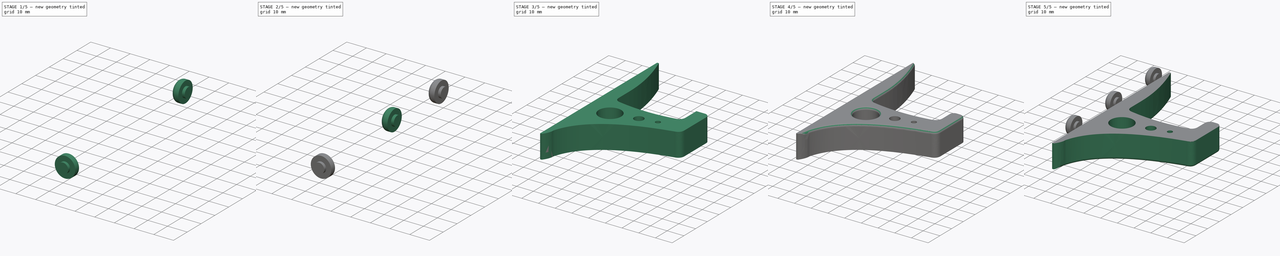
[diagram: build sequence overview — one tinted view per stage of 5, left to right]
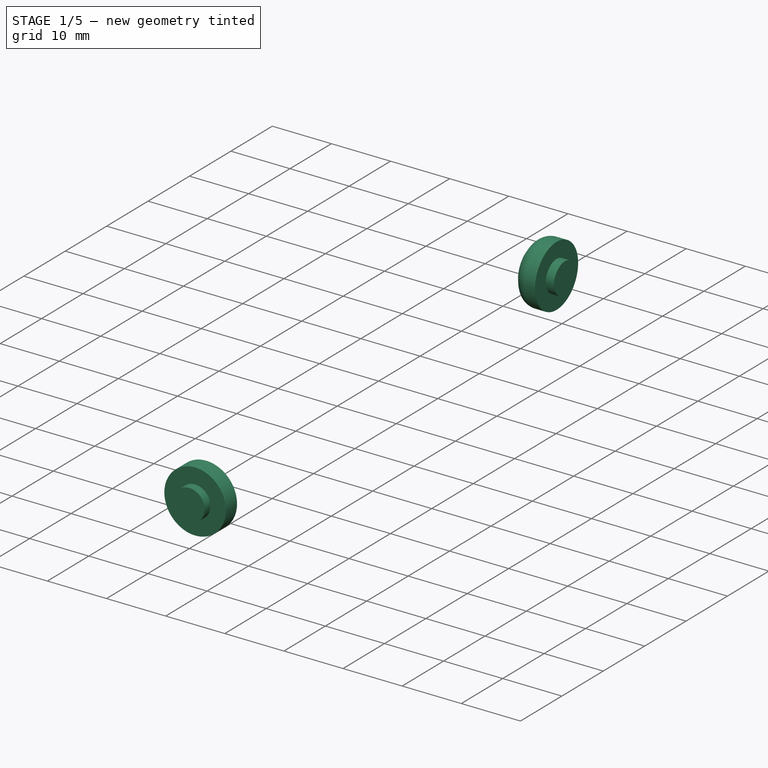
[diagram: stage 1 of 5 — iso view after this stage's code; geometry added in this stage tinted green]
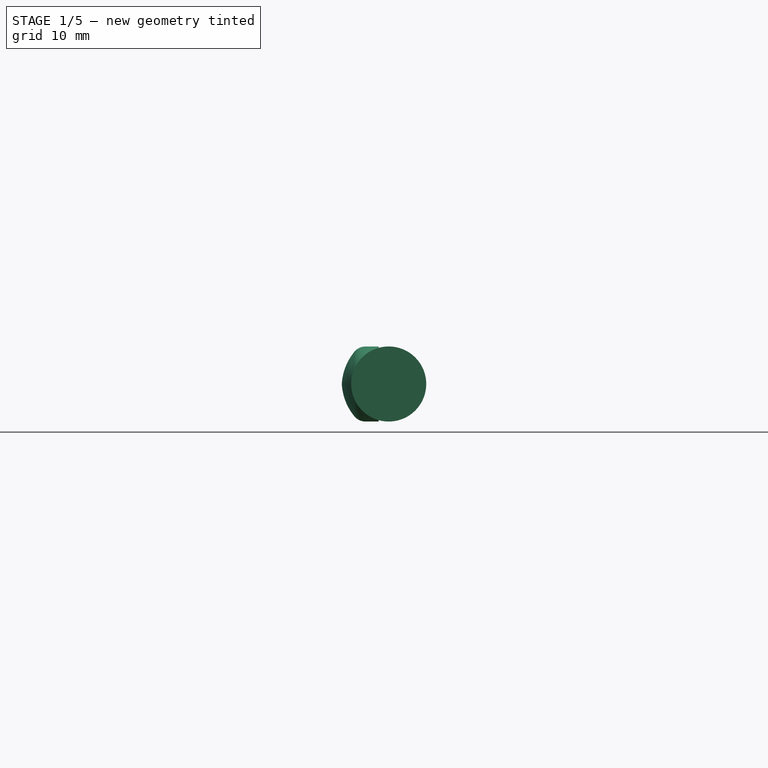
[diagram: stage 1 of 5 — front view after this stage's code; geometry added in this stage tinted green]
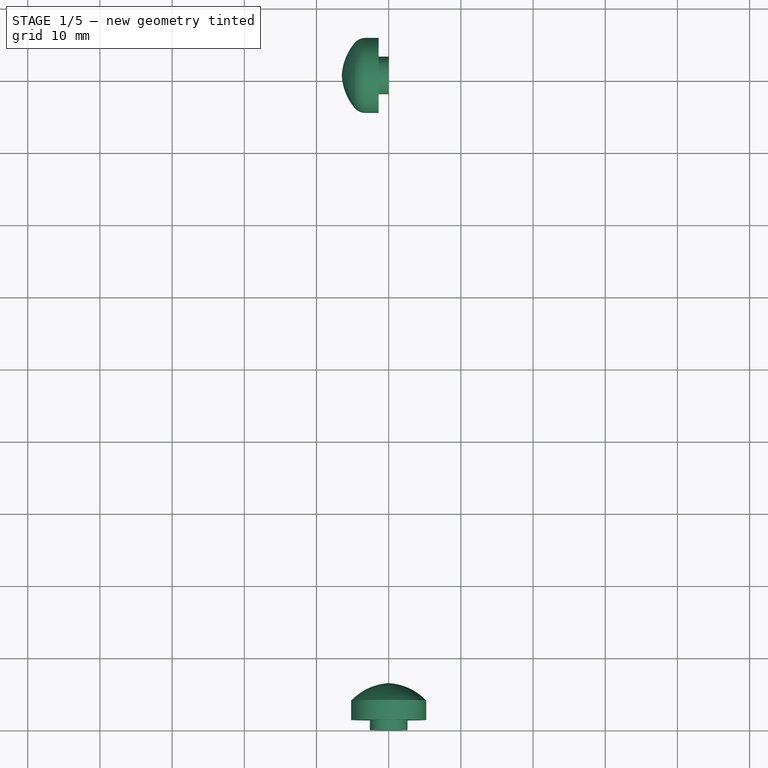
[diagram: stage 1 of 5 — top view after this stage's code; geometry added in this stage tinted green]
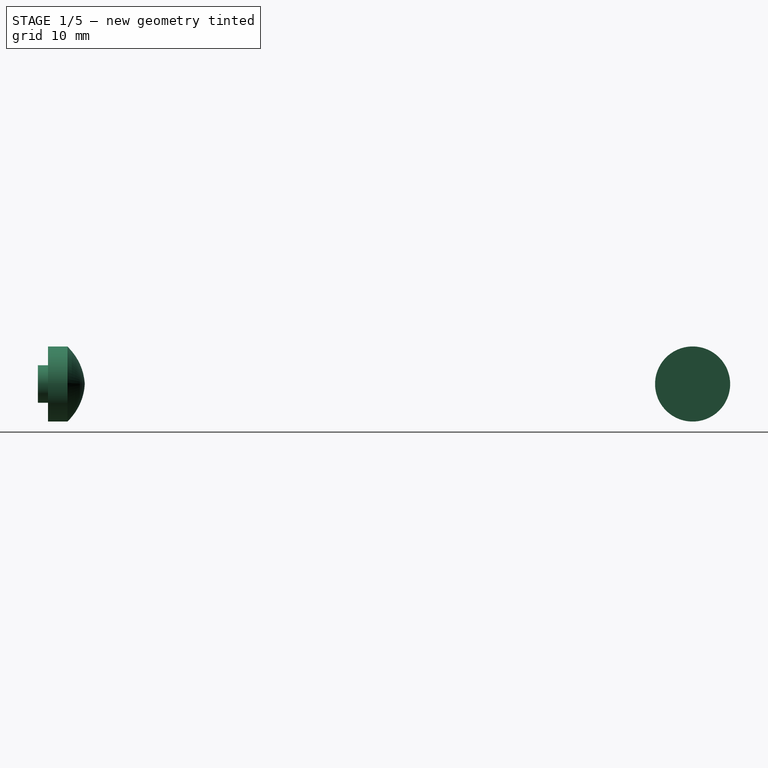
[diagram: stage 1 of 5 — right view after this stage's code; geometry added in this stage tinted green]
FCSTD DOCUMENT  (FreeCAD 0.19R0.19.2)
Label: headphoneStandWithHookStudsRemovedCurrent_8_fixedFlangeSize
License: All rights reserved
LicenseURL: http://en.wikipedia.org/wiki/All_rights_reserved
objects: Part::Fillet×9, Sketcher::SketchObject×8, Part::Revolution×3, Part::MultiFuse×2, App::Part×1, Part::Extrusion×1, Part::Mirroring×1
note: 24 computed .brp shape members not serialized (recipe doc carries the construction recipe); baked Part::Feature solids carry a one-line shape summary decoded from their .brp

FEATURE [Sketcher::SketchObject] Sketch006
  FullyConstrained = true
  Placement = pos=(0,0,0) rot=(0.707107,0,0.707107;3.14159rad)
  sketch-geometry (11):
    g0: LineSegment StartX=-2.6 StartY=0 StartZ=0 EndX=0 EndY=0 EndZ=0
    g1: LineSegment StartX=-2.6 StartY=-1.4 StartZ=0 EndX=-2.6 EndY=0 EndZ=0
    g2: LineSegment StartX=-5.2 StartY=-1.4 StartZ=0 EndX=-2.6 EndY=-1.4 EndZ=0
    g3: LineSegment StartX=-5.2 StartY=-1.4 StartZ=0 EndX=-5.2 EndY=-4.1 EndZ=0
    g4: LineSegment StartX=0 StartY=0 StartZ=0 EndX=0 EndY=-6.5 EndZ=0
    g5: Circle CenterX=-5.2 CenterY=-4.1 CenterZ=0 NormalX=0 NormalY=0 NormalZ=1 AngleXU=0 Radius=1
    g6: Circle CenterX=-2.98381 CenterY=-6.31873 CenterZ=0 NormalX=0 NormalY=0 NormalZ=1 AngleXU=0 Radius=1
    g7: Circle CenterX=0 CenterY=-6.5 CenterZ=0 NormalX=0 NormalY=0 NormalZ=1 AngleXU=0 Radius=1
    g8: BSplineCurve PolesCount=3 KnotsCount=2 Degree=2 IsPeriodic=0
    g9: GeomPoint X=-5.2 Y=-4.1 Z=0
    g10: GeomPoint X=0 Y=-6.5 Z=0
  constraints (26):
    c: Horizontal(g0)
    c: Distance(g0) = 2.6
    c: Vertical(g1)
    c: Distance(g1) = 1.4
    c: Coincident(g0,g-1)
    c: Coincident(g1,g0)
    c: Horizontal(g2)
    c: Coincident(g2,g1)
    c: Distance(g2) = 2.6
    c: Vertical(g3)
    c: Distance(g3) = 2.7
    c: Coincident(g3,g2)
    c: Vertical(g4)
    c: Distance(g4) = 6.5
    c: Coincident(g4,g0)
    c: Weight(g5) = 1
    c: Equal(g5,g6)
    c: Equal(g5,g7)
    c: InternalAlignment(g5,g8)
    c: InternalAlignment(g6,g8)
    c: InternalAlignment(g7,g8)
    c: InternalAlignment(g9,g8)
    c: InternalAlignment(g10,g8)
    c: Coincident(g8,g3)
    c: Coincident(g8,g4)
    c: Block(g8)
FEATURE [Part::Revolution] Revolve005
  Angle = 360
  Axis = (0,1,0)
  Base = (0,0,0)
  FaceMakerClass = Part::FaceMakerBullseye
  Solid = true
  Source = -> Sketch006
  Symmetric = false
FEATURE [Sketcher::SketchObject] Sketch007
  FullyConstrained = true
  Placement = pos=(0,0,0) rot=(0.707107,0,0.707107;3.14159rad)
  sketch-geometry (11):
    g0: LineSegment StartX=-2.6 StartY=0 StartZ=0 EndX=0 EndY=0 EndZ=0
    g1: LineSegment StartX=-2.6 StartY=-1.4 StartZ=0 EndX=-2.6 EndY=0 EndZ=0
    g2: LineSegment StartX=-5.2 StartY=-1.4 StartZ=0 EndX=-2.6 EndY=-1.4 EndZ=0
    g3: LineSegment StartX=-5.2 StartY=-1.4 StartZ=0 EndX=-5.2 EndY=-4.1 EndZ=0
    g4: LineSegment StartX=0 StartY=0 StartZ=0 EndX=0 EndY=-6.5 EndZ=0
    g5: Circle CenterX=-5.2 CenterY=-4.1 CenterZ=0 NormalX=0 NormalY=0 NormalZ=1 AngleXU=0 Radius=1
    g6: Circle CenterX=-2.98381 CenterY=-6.31873 CenterZ=0 NormalX=0 NormalY=0 NormalZ=1 AngleXU=0 Radius=1
    g7: Circle CenterX=0 CenterY=-6.5 CenterZ=0 NormalX=0 NormalY=0 NormalZ=1 AngleXU=0 Radius=1
    g8: BSplineCurve PolesCount=3 KnotsCount=2 Degree=2 IsPeriodic=0
    g9: GeomPoint X=-5.2 Y=-4.1 Z=0
    g10: GeomPoint X=0 Y=-6.5 Z=0
  constraints (26):
    c: Horizontal(g0)
    c: Distance(g0) = 2.6
    c: Vertical(g1)
    c: Distance(g1) = 1.4
    c: Coincident(g0,g-1)
    c: Coincident(g1,g0)
    c: Horizontal(g2)
    c: Coincident(g2,g1)
    c: Distance(g2) = 2.6
    c: Vertical(g3)
    c: Distance(g3) = 2.7
    c: Coincident(g3,g2)
    c: Vertical(g4)
    c: Distance(g4) = 6.5
    c: Coincident(g4,g0)
    c: Weight(g5) = 1
    c: Equal(g5,g6)
    c: Equal(g5,g7)
    c: InternalAlignment(g5,g8)
    c: InternalAlignment(g6,g8)
    c: InternalAlignment(g7,g8)
    c: InternalAlignment(g9,g8)
    c: InternalAlignment(g10,g8)
    c: Coincident(g8,g3)
    c: Coincident(g8,g4)
    c: Block(g8)
FEATURE [Part::Revolution] Revolve006
  Angle = 360
  Axis = (0,1,0)
  Base = (0,0,0)
  FaceMakerClass = Part::FaceMakerBullseye
  Solid = true
  Source = -> Sketch007
  Symmetric = false
FEATURE [Part::Fillet] Fillet013
  Base = -> Revolve006
  Edges = 1 edges r=2: [Edge2]
  Placement = pos=(0,90.7,0) rot=(0,0,1;1.5708rad)
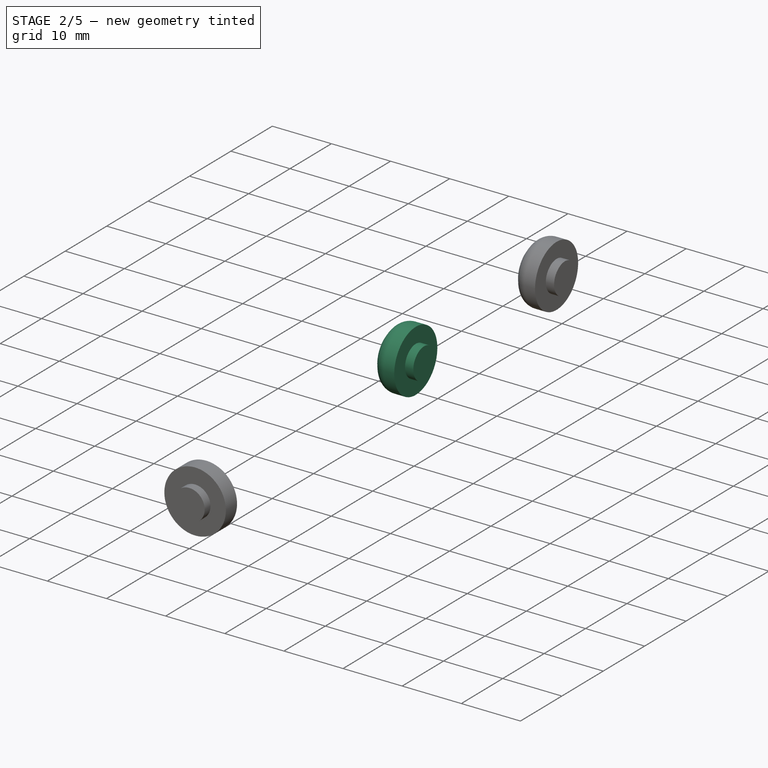
[diagram: stage 2 of 5 — iso view after this stage's code; geometry added in this stage tinted green]
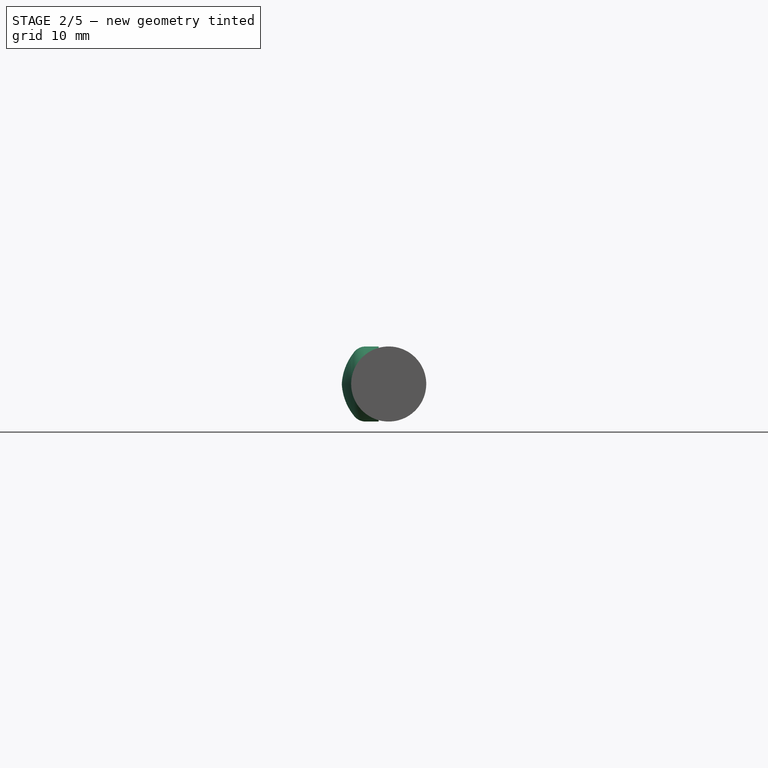
[diagram: stage 2 of 5 — front view after this stage's code; geometry added in this stage tinted green]
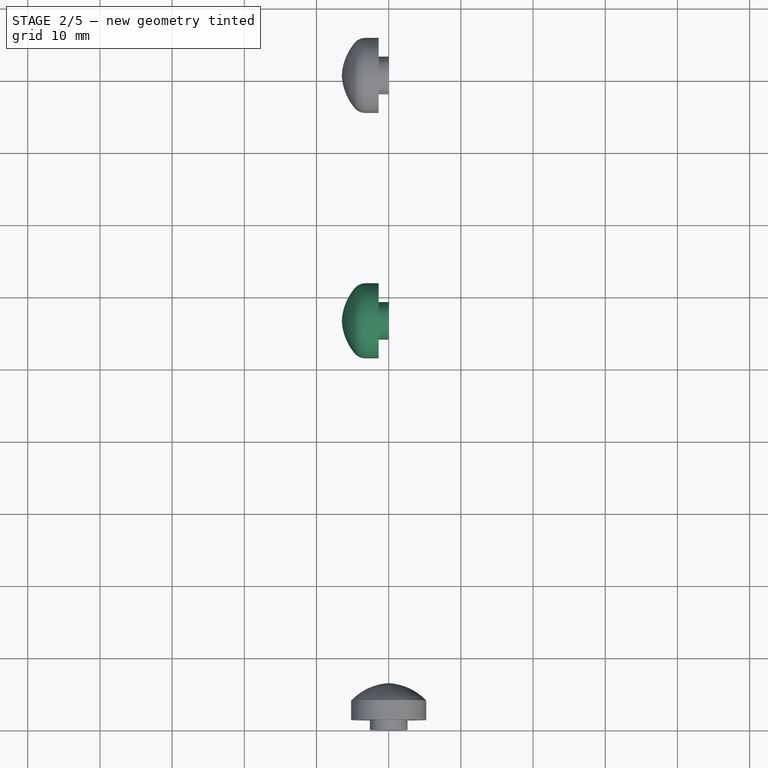
[diagram: stage 2 of 5 — top view after this stage's code; geometry added in this stage tinted green]
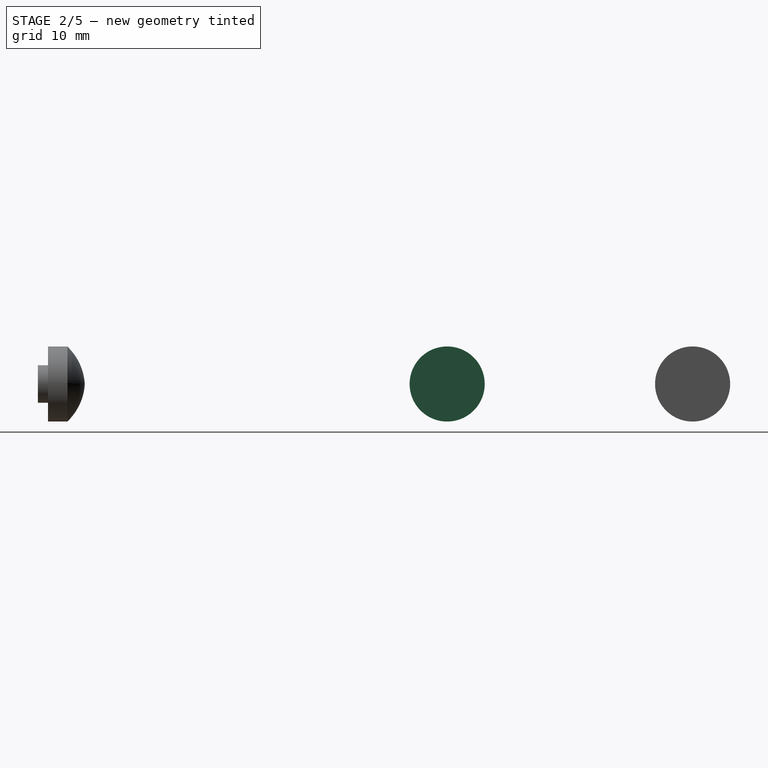
[diagram: stage 2 of 5 — right view after this stage's code; geometry added in this stage tinted green]
FEATURE [Sketcher::SketchObject] Sketch005
  FullyConstrained = true
  Placement = pos=(0,0,0) rot=(0.707107,0,0.707107;3.14159rad)
  sketch-geometry (11):
    g0: LineSegment StartX=-2.6 StartY=0 StartZ=0 EndX=0 EndY=0 EndZ=0
    g1: LineSegment StartX=-2.6 StartY=-1.4 StartZ=0 EndX=-2.6 EndY=0 EndZ=0
    g2: LineSegment StartX=-5.2 StartY=-1.4 StartZ=0 EndX=-2.6 EndY=-1.4 EndZ=0
    g3: LineSegment StartX=-5.2 StartY=-1.4 StartZ=0 EndX=-5.2 EndY=-4.1 EndZ=0
    g4: LineSegment StartX=0 StartY=0 StartZ=0 EndX=0 EndY=-6.5 EndZ=0
    g5: Circle CenterX=-5.2 CenterY=-4.1 CenterZ=0 NormalX=0 NormalY=0 NormalZ=1 AngleXU=0 Radius=1
    g6: Circle CenterX=-2.98381 CenterY=-6.31873 CenterZ=0 NormalX=0 NormalY=0 NormalZ=1 AngleXU=0 Radius=1
    g7: Circle CenterX=0 CenterY=-6.5 CenterZ=0 NormalX=0 NormalY=0 NormalZ=1 AngleXU=0 Radius=1
    g8: BSplineCurve PolesCount=3 KnotsCount=2 Degree=2 IsPeriodic=0
    g9: GeomPoint X=-5.2 Y=-4.1 Z=0
    g10: GeomPoint X=0 Y=-6.5 Z=0
  constraints (26):
    c: Horizontal(g0)
    c: Distance(g0) = 2.6
    c: Vertical(g1)
    c: Distance(g1) = 1.4
    c: Coincident(g0,g-1)
    c: Coincident(g1,g0)
    c: Horizontal(g2)
    c: Coincident(g2,g1)
    c: Distance(g2) = 2.6
    c: Vertical(g3)
    c: Distance(g3) = 2.7
    c: Coincident(g3,g2)
    c: Vertical(g4)
    c: Distance(g4) = 6.5
    c: Coincident(g4,g0)
    c: Weight(g5) = 1
    c: Equal(g5,g6)
    c: Equal(g5,g7)
    c: InternalAlignment(g5,g8)
    c: InternalAlignment(g6,g8)
    c: InternalAlignment(g7,g8)
    c: InternalAlignment(g9,g8)
    c: InternalAlignment(g10,g8)
    c: Coincident(g8,g3)
    c: Coincident(g8,g4)
    c: Block(g8)
FEATURE [Part::Revolution] Revolve004
  Angle = 360
  Axis = (0,1,0)
  Base = (0,0,0)
  FaceMakerClass = Part::FaceMakerBullseye
  Solid = true
  Source = -> Sketch005
  Symmetric = false
FEATURE [Part::Fillet] Fillet012
  Base = -> Revolve005
  Edges = 1 edges r=2: [Edge2]
  Placement = pos=(0,56.7,0) rot=(0,0,1;1.5708rad)
FEATURE [Part::MultiFuse] Fusion
  Shapes = -> [Fillet013,Fillet012]
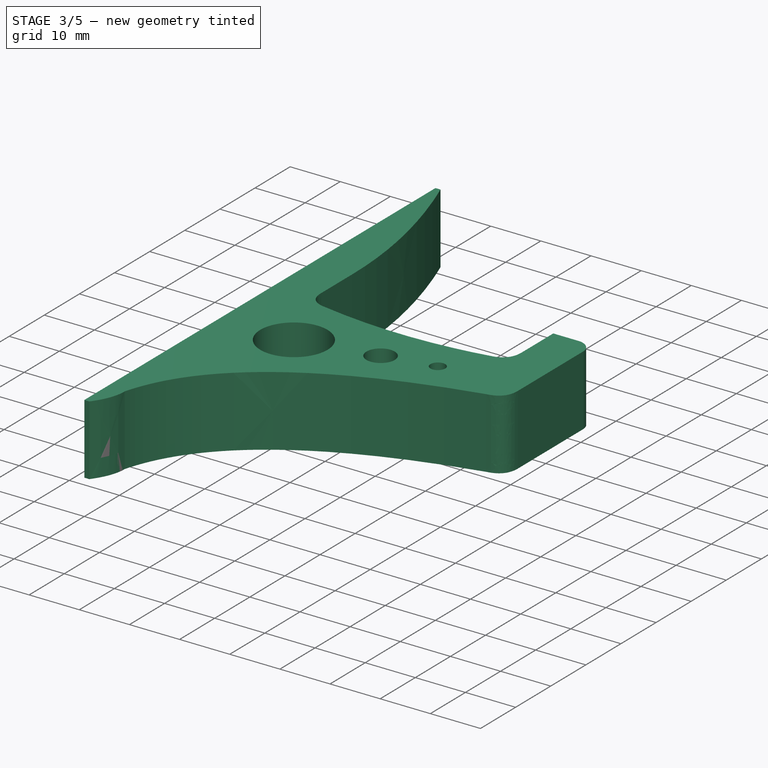
[diagram: stage 3 of 5 — iso view after this stage's code; geometry added in this stage tinted green]
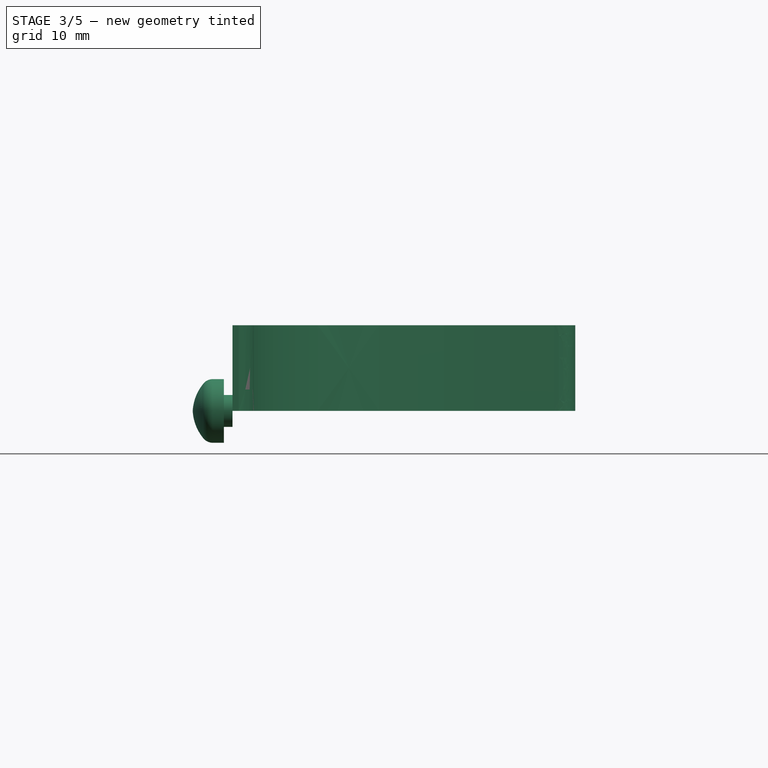
[diagram: stage 3 of 5 — front view after this stage's code; geometry added in this stage tinted green]
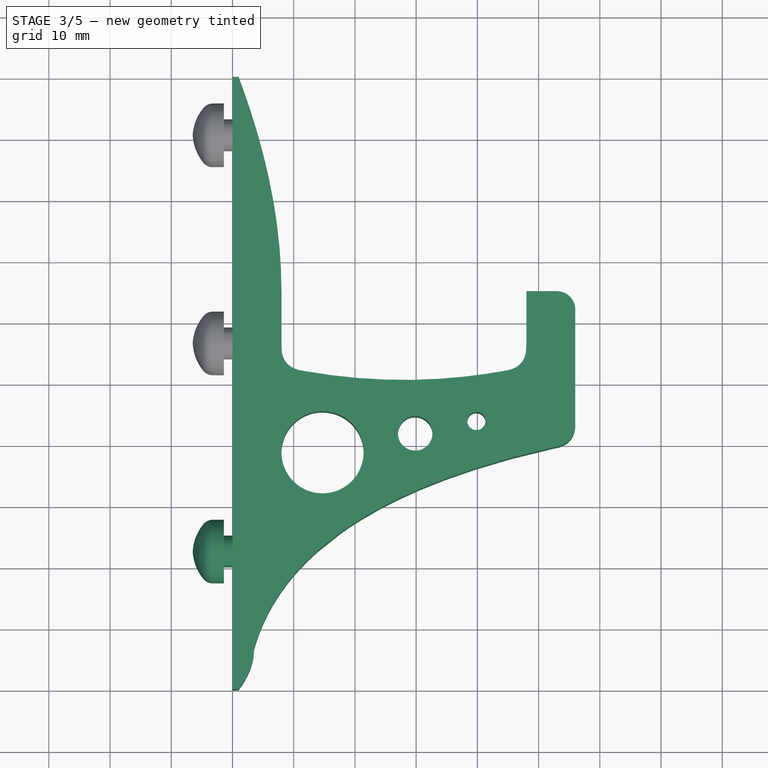
[diagram: stage 3 of 5 — top view after this stage's code; geometry added in this stage tinted green]
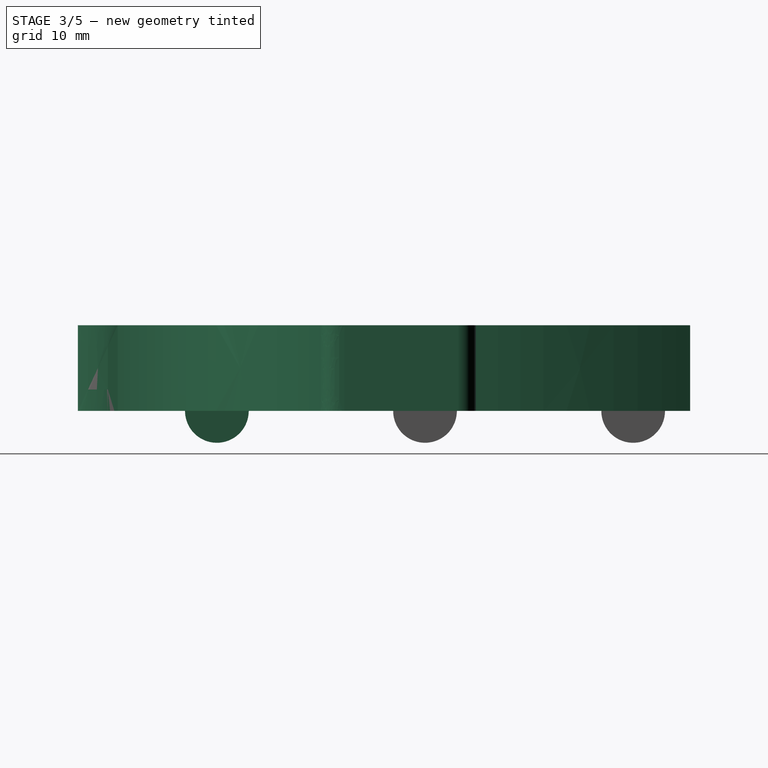
[diagram: stage 3 of 5 — right view after this stage's code; geometry added in this stage tinted green]
FEATURE [Sketcher::SketchObject] Sketch
  FullyConstrained = false
  sketch-geometry (53):
    g0: LineSegment StartX=0 StartY=0 StartZ=0 EndX=0 EndY=100 EndZ=0
    g1: LineSegment StartX=8 StartY=65 StartZ=0 EndX=8 EndY=56 EndZ=0
    g2: Circle CenterX=8 CenterY=56 CenterZ=0 NormalX=0 NormalY=0 NormalZ=1 AngleXU=0 Radius=1
    g3: Circle CenterX=8 CenterY=52.5 CenterZ=0 NormalX=0 NormalY=0 NormalZ=1 AngleXU=0 Radius=1
    g4: Circle CenterX=11.5 CenterY=52 CenterZ=0 NormalX=0 NormalY=0 NormalZ=1 AngleXU=0 Radius=1
    g5: BSplineCurve PolesCount=3 KnotsCount=2 Degree=2 IsPeriodic=0
    g6: GeomPoint X=8 Y=56 Z=0
    g7: GeomPoint X=11.5 Y=52 Z=0
    g8: Circle CenterX=44.5 CenterY=52 CenterZ=0 NormalX=0 NormalY=0 NormalZ=1 AngleXU=0 Radius=1
    g9: Circle CenterX=48 CenterY=52.5 CenterZ=0 NormalX=0 NormalY=0 NormalZ=1 AngleXU=0 Radius=1
    g10: Circle CenterX=48 CenterY=56 CenterZ=0 NormalX=0 NormalY=0 NormalZ=1 AngleXU=0 Radius=1
    g11: BSplineCurve PolesCount=3 KnotsCount=2 Degree=2 IsPeriodic=0
    g12: GeomPoint X=44.5 Y=52 Z=0
    g13: GeomPoint X=48 Y=56 Z=0
    g14: Circle CenterX=11.5 CenterY=52 CenterZ=0 NormalX=0 NormalY=0 NormalZ=1 AngleXU=0 Radius=1
    g15: Circle CenterX=28 CenterY=49 CenterZ=0 NormalX=0 NormalY=0 NormalZ=1 AngleXU=0 Radius=1
    g16: Circle CenterX=44.5 CenterY=52 CenterZ=0 NormalX=0 NormalY=0 NormalZ=1 AngleXU=0 Radius=1
    g17: BSplineCurve PolesCount=3 KnotsCount=2 Degree=2 IsPeriodic=0
    g18: GeomPoint X=11.5 Y=52 Z=0
    g19: GeomPoint X=44.5 Y=52 Z=0
    g20: LineSegment StartX=48 StartY=65 StartZ=0 EndX=48 EndY=56 EndZ=0
    g21: LineSegment StartX=48 StartY=65 StartZ=0 EndX=56 EndY=65 EndZ=0
    g22: LineSegment StartX=56 StartY=65 StartZ=0 EndX=56 EndY=43.5 EndZ=0
    g23: LineSegment StartX=0 StartY=0 StartZ=0 EndX=1 EndY=0 EndZ=0
    g24: LineSegment StartX=0 StartY=100 StartZ=0 EndX=1 EndY=100 EndZ=0
    g25: Circle CenterX=8 CenterY=65 CenterZ=0 NormalX=0 NormalY=0 NormalZ=1 AngleXU=0 Radius=1
    g26: Circle CenterX=8 CenterY=81.5 CenterZ=0 NormalX=0 NormalY=0 NormalZ=1 AngleXU=0 Radius=1
    g27: Circle CenterX=1 CenterY=100 CenterZ=0 NormalX=0 NormalY=0 NormalZ=1 AngleXU=0 Radius=1
    g28: BSplineCurve PolesCount=3 KnotsCount=2 Degree=2 IsPeriodic=0
    g29: GeomPoint X=8 Y=65 Z=0
    g30: GeomPoint X=1 Y=100 Z=0
    g31: Circle CenterX=1 CenterY=0 CenterZ=0 NormalX=0 NormalY=0 NormalZ=1 AngleXU=0 Radius=1
    g32: Circle CenterX=3.5 CenterY=3.3 CenterZ=0 NormalX=0 NormalY=0 NormalZ=1 AngleXU=0 Radius=1
    g33: Circle CenterX=3.5 CenterY=6.5 CenterZ=0 NormalX=0 NormalY=0 NormalZ=1 AngleXU=0 Radius=1
    g34: BSplineCurve PolesCount=3 KnotsCount=2 Degree=2 IsPeriodic=0
    g35: GeomPoint X=1 Y=0 Z=0
    g36: GeomPoint X=3.5 Y=6.5 Z=0
    g37: Circle CenterX=52.5 CenterY=39.5 CenterZ=0 NormalX=0 NormalY=0 NormalZ=1 AngleXU=0 Radius=1
    g38: Circle CenterX=14.7093 CenterY=38.6805 CenterZ=0 NormalX=0 NormalY=0 NormalZ=1 AngleXU=0 Radius=6.70926
    g39: Circle CenterX=29.841 CenterY=41.7672 CenterZ=0 NormalX=0 NormalY=0 NormalZ=1 AngleXU=0 Radius=2.81748
    g40: Circle CenterX=39.8381 CenterY=43.7858 CenterZ=0 NormalX=0 NormalY=0 NormalZ=1 AngleXU=0 Radius=1.47826
    g41: Circle CenterX=3.5 CenterY=6.5 CenterZ=0 NormalX=0 NormalY=0 NormalZ=1 AngleXU=0 Radius=1
    g42: Circle CenterX=10 CenterY=30 CenterZ=0 NormalX=0 NormalY=0 NormalZ=1 AngleXU=0 Radius=1
    g43: Circle CenterX=49.0984 CenterY=38.8305 CenterZ=0 NormalX=0 NormalY=0 NormalZ=1 AngleXU=0 Radius=1
    g44: BSplineCurve PolesCount=3 KnotsCount=2 Degree=2 IsPeriodic=0
    g45: GeomPoint X=3.5 Y=6.5 Z=0
    g46: GeomPoint X=49.0984 Y=38.8305 Z=0
    g47: Circle CenterX=49.0984 CenterY=38.8305 CenterZ=0 NormalX=0 NormalY=0 NormalZ=1 AngleXU=0 Radius=1
    g48: Circle CenterX=56 CenterY=40 CenterZ=0 NormalX=0 NormalY=0 NormalZ=1 AngleXU=0 Radius=1
    g49: Circle CenterX=56 CenterY=47 CenterZ=0 NormalX=0 NormalY=0 NormalZ=1 AngleXU=0 Radius=1
    g50: BSplineCurve PolesCount=3 KnotsCount=2 Degree=2 IsPeriodic=0
    g51: GeomPoint X=49.0984 Y=38.8305 Z=0
    g52: GeomPoint X=56 Y=47 Z=0
  constraints (93):
    c: Vertical(g0)
    c: Distance(g0) = 100
    c: Coincident(g0,g-1)
    c: Block(g0)
    c: Vertical(g1)
    c: Distance(g1) = 9
    c: Block(g1)
    c: Weight(g2) = 1
    c: Equal(g2,g3)
    c: Equal(g2,g4)
    c: InternalAlignment(g2,g5)
    c: InternalAlignment(g3,g5)
    c: InternalAlignment(g4,g5)
    c: InternalAlignment(g6,g5)
    c: InternalAlignment(g7,g5)
    c: Coincident(g5,g1)
    c: Block(g5)
    c: Weight(g8) = 1
    c: Equal(g8,g9)
    c: Equal(g8,g10)
    c: InternalAlignment(g8,g11)
    c: InternalAlignment(g9,g11)
    c: InternalAlignment(g10,g11)
    c: InternalAlignment(g12,g11)
    c: InternalAlignment(g13,g11)
    c: Block(g11)
    c: Weight(g14) = 1
    c: Equal(g14,g15)
    c: Equal(g14,g16)
    c: InternalAlignment(g14,g17)
    c: InternalAlignment(g15,g17)
    c: InternalAlignment(g16,g17)
    c: InternalAlignment(g18,g17)
    c: InternalAlignment(g19,g17)
    c: Coincident(g17,g5)
    c: Coincident(g17,g11)
    c: Block(g17)
    c: Vertical(g20)
    c: Coincident(g20,g11)
    c: Equal(g1,g20)
    c: Horizontal(g21)
    c: Coincident(g21,g20)
    c: Distance(g21) = 8
    c: Vertical(g22)
    c: Block(g21)
    c: Coincident(g22,g21)
    c: Distance(g22) = 21.5
    c: Horizontal(g23)
    c: Distance(g23) = 1
    c: Coincident(g23,g0)
    c: Block(g23)
    c: Horizontal(g24)
    c: Distance(g24) = 1
    c: Coincident(g24,g0)
    c: Block(g24)
    c: Weight(g25) = 1
    c: Equal(g25,g26)
    c: Equal(g25,g27)
    c: InternalAlignment(g25,g28)
    c: InternalAlignment(g26,g28)
    c: InternalAlignment(g27,g28)
    c: InternalAlignment(g29,g28)
    c: InternalAlignment(g30,g28)
    c: Coincident(g28,g24)
    c: Coincident(g28,g1)
    c: Block(g28)
    c: Weight(g31) = 1
    c: Equal(g31,g32)
    c: Equal(g31,g33)
    c: InternalAlignment(g31,g34)
    c: InternalAlignment(g32,g34)
    c: InternalAlignment(g33,g34)
    c: InternalAlignment(g35,g34)
    c: Block(g38)
    c: Block(g39)
    c: Block(g40)
    c: Weight(g41) = 1
    c: Equal(g41,g42)
    c: Equal(g41,g43)
    c: InternalAlignment(g41,g44)
    c: InternalAlignment(g42,g44)
    c: InternalAlignment(g43,g44)
    c: InternalAlignment(g45,g44)
    c: InternalAlignment(g46,g44)
    c: Coincident(g44,g34)
    c: Weight(g47) = 1
    c: Equal(g47,g48)
    c: Equal(g47,g49)
    c: InternalAlignment(g47,g50)
    c: InternalAlignment(g48,g50)
    c: InternalAlignment(g49,g50)
    c: InternalAlignment(g51,g50)
    c: InternalAlignment(g52,g50)
FEATURE [Sketcher::SketchObject] Sketch002
  FullyConstrained = true
  Placement = pos=(0,0,0) rot=(0.707107,0,0.707107;3.14159rad)
  sketch-geometry (11):
    g0: LineSegment StartX=-7.7 StartY=-1.5 StartZ=0 EndX=-2.5 EndY=-1.5 EndZ=0
    g1: LineSegment StartX=-2.5 StartY=0.1 StartZ=0 EndX=0 EndY=0.1 EndZ=0
    g2: LineSegment StartX=-7.7 StartY=-1.5 StartZ=0 EndX=-7.7 EndY=-4.2 EndZ=0
    g3: Circle CenterX=-7.7 CenterY=-4.2 CenterZ=0 NormalX=0 NormalY=0 NormalZ=1 AngleXU=0 Radius=1
    g4: Circle CenterX=-3.852 CenterY=-7.00779 CenterZ=0 NormalX=0 NormalY=0 NormalZ=1 AngleXU=0 Radius=1
    g5: Circle CenterX=0 CenterY=-7.2 CenterZ=0 NormalX=0 NormalY=0 NormalZ=1 AngleXU=0 Radius=1
    g6: BSplineCurve PolesCount=3 KnotsCount=2 Degree=2 IsPeriodic=0
    g7: GeomPoint X=-7.7 Y=-4.2 Z=0
    g8: GeomPoint X=0 Y=-7.2 Z=0
    g9: LineSegment StartX=-2.5 StartY=0.1 StartZ=0 EndX=-2.5 EndY=-1.5 EndZ=0
    g10: LineSegment StartX=0 StartY=0.1 StartZ=0 EndX=0 EndY=-7.2 EndZ=0
  constraints (24):
    c: Horizontal(g0)
    c: Distance(g0) = 5.2
    c: Horizontal(g1)
    c: Block(g0)
    c: Vertical(g2)
    c: Distance(g2) = 2.7
    c: Coincident(g2,g0)
    c: Weight(g3) = 1
    c: Equal(g3,g4)
    c: Equal(g3,g5)
    c: InternalAlignment(g3,g6)
    c: InternalAlignment(g4,g6)
    c: InternalAlignment(g5,g6)
    c: InternalAlignment(g7,g6)
    c: InternalAlignment(g8,g6)
    c: Coincident(g6,g2)
    c: Block(g6)
    c: Vertical(g9)
    c: Distance(g9) = 1.6
    c: Coincident(g9,g0)
    c: Vertical(g10)
    c: Coincident(g10,g6)
    c: Coincident(g1,g9)
    c: Coincident(g1,g10)
FEATURE [Sketcher::SketchObject] Sketch003
  FullyConstrained = true
  Placement = pos=(0,0,0) rot=(0.707107,0,0.707107;3.14159rad)
  sketch-geometry (11):
    g0: LineSegment StartX=-7.7 StartY=-1.5 StartZ=0 EndX=-2.5 EndY=-1.5 EndZ=0
    g1: LineSegment StartX=-2.5 StartY=0.1 StartZ=0 EndX=0 EndY=0.1 EndZ=0
    g2: LineSegment StartX=-7.7 StartY=-1.5 StartZ=0 EndX=-7.7 EndY=-4.2 EndZ=0
    g3: Circle CenterX=-7.7 CenterY=-4.2 CenterZ=0 NormalX=0 NormalY=0 NormalZ=1 AngleXU=0 Radius=1
    g4: Circle CenterX=-3.852 CenterY=-7.00779 CenterZ=0 NormalX=0 NormalY=0 NormalZ=1 AngleXU=0 Radius=1
    g5: Circle CenterX=0 CenterY=-7.2 CenterZ=0 NormalX=0 NormalY=0 NormalZ=1 AngleXU=0 Radius=1
    g6: BSplineCurve PolesCount=3 KnotsCount=2 Degree=2 IsPeriodic=0
    g7: GeomPoint X=-7.7 Y=-4.2 Z=0
    g8: GeomPoint X=0 Y=-7.2 Z=0
    g9: LineSegment StartX=-2.5 StartY=0.1 StartZ=0 EndX=-2.5 EndY=-1.5 EndZ=0
    g10: LineSegment StartX=0 StartY=0.1 StartZ=0 EndX=0 EndY=-7.2 EndZ=0
  constraints (24):
    c: Horizontal(g0)
    c: Distance(g0) = 5.2
    c: Horizontal(g1)
    c: Block(g0)
    c: Vertical(g2)
    c: Distance(g2) = 2.7
    c: Coincident(g2,g0)
    c: Weight(g3) = 1
    c: Equal(g3,g4)
    c: Equal(g3,g5)
    c: InternalAlignment(g3,g6)
    c: InternalAlignment(g4,g6)
    c: InternalAlignment(g5,g6)
    c: InternalAlignment(g7,g6)
    c: InternalAlignment(g8,g6)
    c: Coincident(g6,g2)
    c: Block(g6)
    c: Vertical(g9)
    c: Distance(g9) = 1.6
    c: Coincident(g9,g0)
    c: Vertical(g10)
    c: Coincident(g10,g6)
    c: Coincident(g1,g9)
    c: Coincident(g1,g10)
FEATURE [Sketcher::SketchObject] Sketch004
  FullyConstrained = true
  Placement = pos=(0,0,0) rot=(0.707107,0,0.707107;3.14159rad)
  sketch-geometry (11):
    g0: LineSegment StartX=-7.7 StartY=-1.5 StartZ=0 EndX=-2.5 EndY=-1.5 EndZ=0
    g1: LineSegment StartX=-2.5 StartY=0.1 StartZ=0 EndX=0 EndY=0.1 EndZ=0
    g2: LineSegment StartX=-7.7 StartY=-1.5 StartZ=0 EndX=-7.7 EndY=-4.2 EndZ=0
    g3: Circle CenterX=-7.7 CenterY=-4.2 CenterZ=0 NormalX=0 NormalY=0 NormalZ=1 AngleXU=0 Radius=1
    g4: Circle CenterX=-3.852 CenterY=-7.00779 CenterZ=0 NormalX=0 NormalY=0 NormalZ=1 AngleXU=0 Radius=1
    g5: Circle CenterX=0 CenterY=-7.2 CenterZ=0 NormalX=0 NormalY=0 NormalZ=1 AngleXU=0 Radius=1
    g6: BSplineCurve PolesCount=3 KnotsCount=2 Degree=2 IsPeriodic=0
    g7: GeomPoint X=-7.7 Y=-4.2 Z=0
    g8: GeomPoint X=0 Y=-7.2 Z=0
    g9: LineSegment StartX=-2.5 StartY=0.1 StartZ=0 EndX=-2.5 EndY=-1.5 EndZ=0
    g10: LineSegment StartX=0 StartY=0.1 StartZ=0 EndX=0 EndY=-7.2 EndZ=0
  constraints (24):
    c: Horizontal(g0)
    c: Distance(g0) = 5.2
    c: Horizontal(g1)
    c: Block(g0)
    c: Vertical(g2)
    c: Distance(g2) = 2.7
    c: Coincident(g2,g0)
    c: Weight(g3) = 1
    c: Equal(g3,g4)
    c: Equal(g3,g5)
    c: InternalAlignment(g3,g6)
    c: InternalAlignment(g4,g6)
    c: InternalAlignment(g5,g6)
    c: InternalAlignment(g7,g6)
    c: InternalAlignment(g8,g6)
    c: Coincident(g6,g2)
    c: Block(g6)
    c: Vertical(g9)
    c: Distance(g9) = 1.6
    c: Coincident(g9,g0)
    c: Vertical(g10)
    c: Coincident(g10,g6)
    c: Coincident(g1,g9)
    c: Coincident(g1,g10)
FEATURE [App::Part] Part
  Origin = -> Origin
FEATURE [Part::Extrusion] Extrude
  Base = -> Sketch
  Dir = (0,0,1)
  DirMode = 2
  FaceMakerClass = Part::FaceMakerBullseye
  LengthFwd = 14
  LengthRev = 0
  Solid = true
  Symmetric = false
FEATURE [Part::Fillet] Fillet
  Base = -> Extrude
  Edges = 1 edges r=3: [Edge29]
FEATURE [Part::Fillet] Fillet011
  Base = -> Revolve004
  Edges = 1 edges r=2: [Edge2]
  Placement = pos=(0,22.7,0) rot=(0,0,1;1.5708rad)
FEATURE [Part::MultiFuse] Fusion001
  Shapes = -> [Fillet011,Fusion]
FEATURE [Sketcher::SketchObject] Sketch008
  FullyConstrained = true
  Placement = pos=(0,0,0) rot=(0.707107,0,0.707107;3.14159rad)
  sketch-geometry (11):
    g0: LineSegment StartX=-2.6 StartY=0 StartZ=0 EndX=0 EndY=0 EndZ=0
    g1: LineSegment StartX=-2.6 StartY=-1.4 StartZ=0 EndX=-2.6 EndY=0 EndZ=0
    g2: LineSegment StartX=-5.2 StartY=-1.4 StartZ=0 EndX=-2.6 EndY=-1.4 EndZ=0
    g3: LineSegment StartX=-5.2 StartY=-1.4 StartZ=0 EndX=-5.2 EndY=-4.1 EndZ=0
    g4: LineSegment StartX=0 StartY=0 StartZ=0 EndX=0 EndY=-6.5 EndZ=0
    g5: Circle CenterX=-5.2 CenterY=-4.1 CenterZ=0 NormalX=0 NormalY=0 NormalZ=1 AngleXU=0 Radius=1
    g6: Circle CenterX=-2.98381 CenterY=-6.31873 CenterZ=0 NormalX=0 NormalY=0 NormalZ=1 AngleXU=0 Radius=1
    g7: Circle CenterX=0 CenterY=-6.5 CenterZ=0 NormalX=0 NormalY=0 NormalZ=1 AngleXU=0 Radius=1
    g8: BSplineCurve PolesCount=3 KnotsCount=2 Degree=2 IsPeriodic=0
    g9: GeomPoint X=-5.2 Y=-4.1 Z=0
    g10: GeomPoint X=0 Y=-6.5 Z=0
  constraints (26):
    c: Horizontal(g0)
    c: Distance(g0) = 2.6
    c: Vertical(g1)
    c: Distance(g1) = 1.4
    c: Coincident(g0,g-1)
    c: Coincident(g1,g0)
    c: Horizontal(g2)
    c: Coincident(g2,g1)
    c: Distance(g2) = 2.6
    c: Vertical(g3)
    c: Distance(g3) = 2.7
    c: Coincident(g3,g2)
    c: Vertical(g4)
    c: Distance(g4) = 6.5
    c: Coincident(g4,g0)
    c: Weight(g5) = 1
    c: Equal(g5,g6)
    c: Equal(g5,g7)
    c: InternalAlignment(g5,g8)
    c: InternalAlignment(g6,g8)
    c: InternalAlignment(g7,g8)
    c: InternalAlignment(g9,g8)
    c: InternalAlignment(g10,g8)
    c: Coincident(g8,g3)
    c: Coincident(g8,g4)
    c: Block(g8)
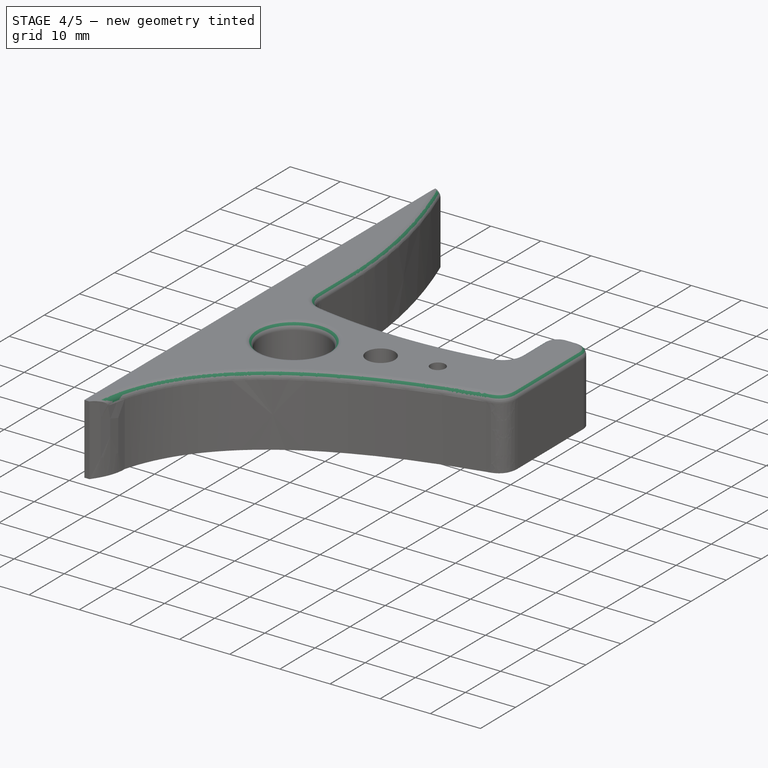
[diagram: stage 4 of 5 — iso view after this stage's code; geometry added in this stage tinted green]
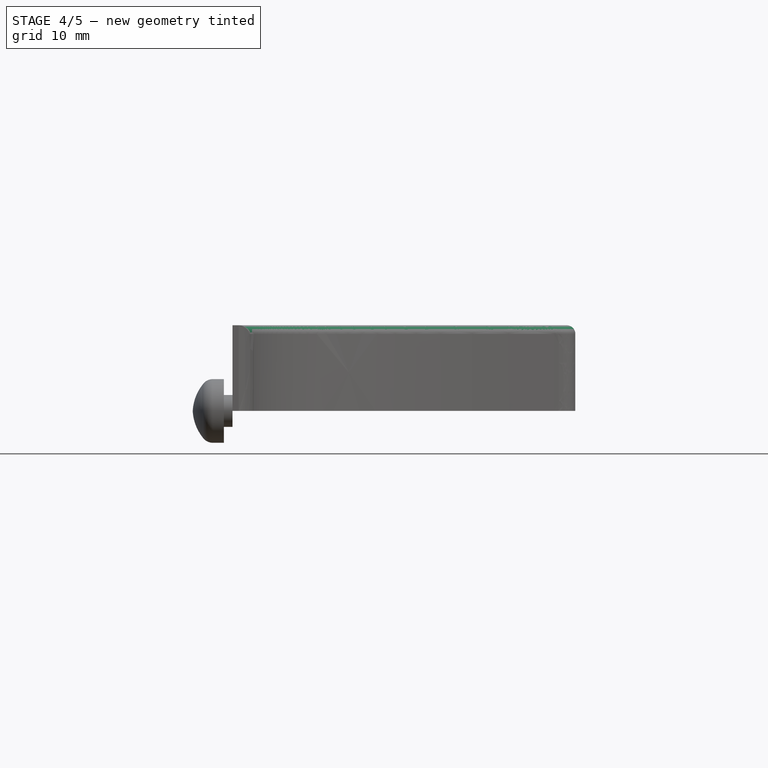
[diagram: stage 4 of 5 — front view after this stage's code; geometry added in this stage tinted green]
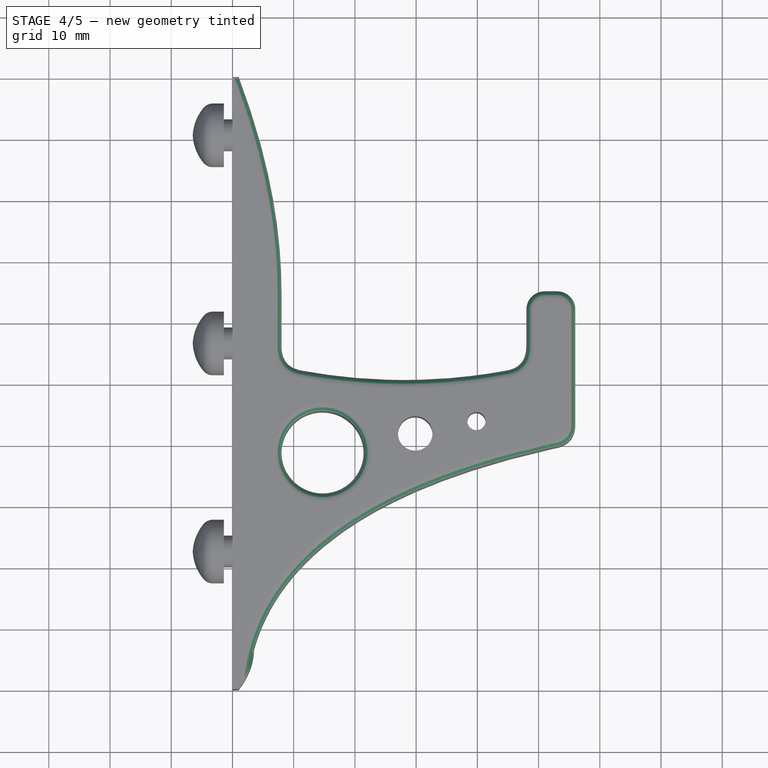
[diagram: stage 4 of 5 — top view after this stage's code; geometry added in this stage tinted green]
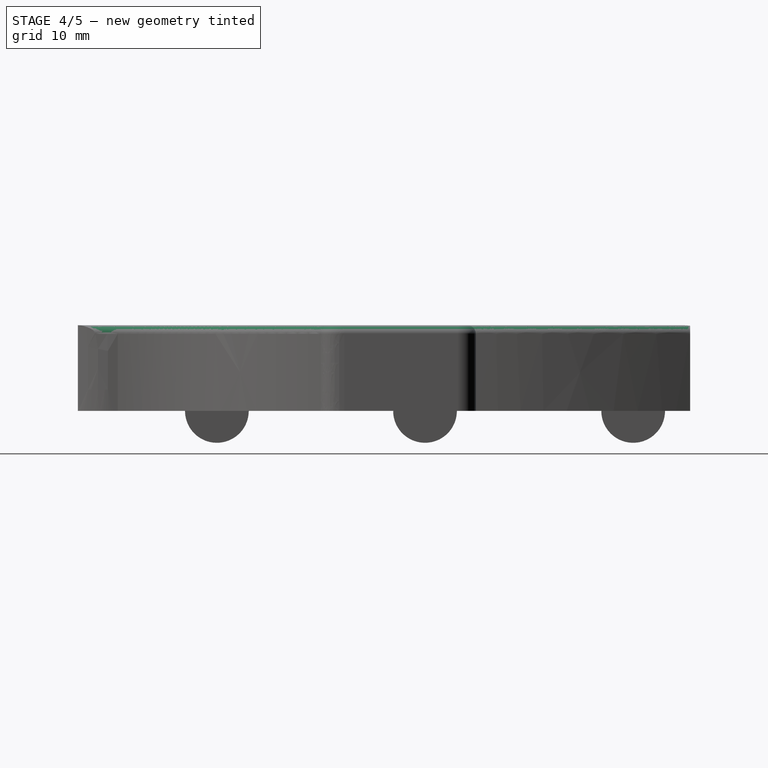
[diagram: stage 4 of 5 — right view after this stage's code; geometry added in this stage tinted green]
FEATURE [Part::Fillet] Fillet006
  Base = -> Fillet
  Edges = 1 edges r=3: [Edge2]
FEATURE [Part::Fillet] Fillet007
  Base = -> Fillet006
  Edges = 1 edges r=1.4: [Edge29]
FEATURE [Part::Fillet] Fillet008
  Base = -> Fillet007
  Edges = 1 edges r=1.4: [Edge46]
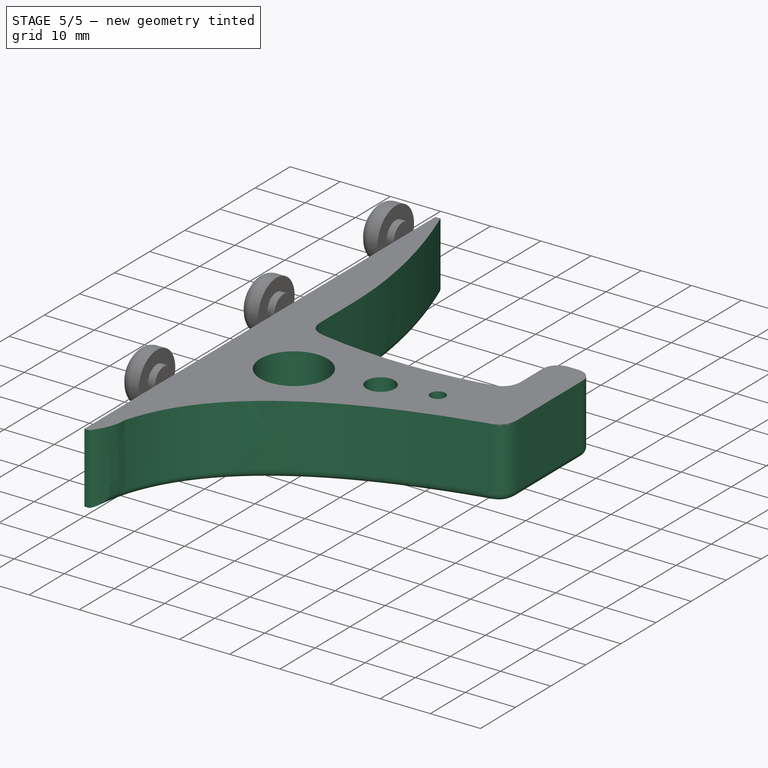
[diagram: stage 5 of 5 — iso view after this stage's code; geometry added in this stage tinted green]
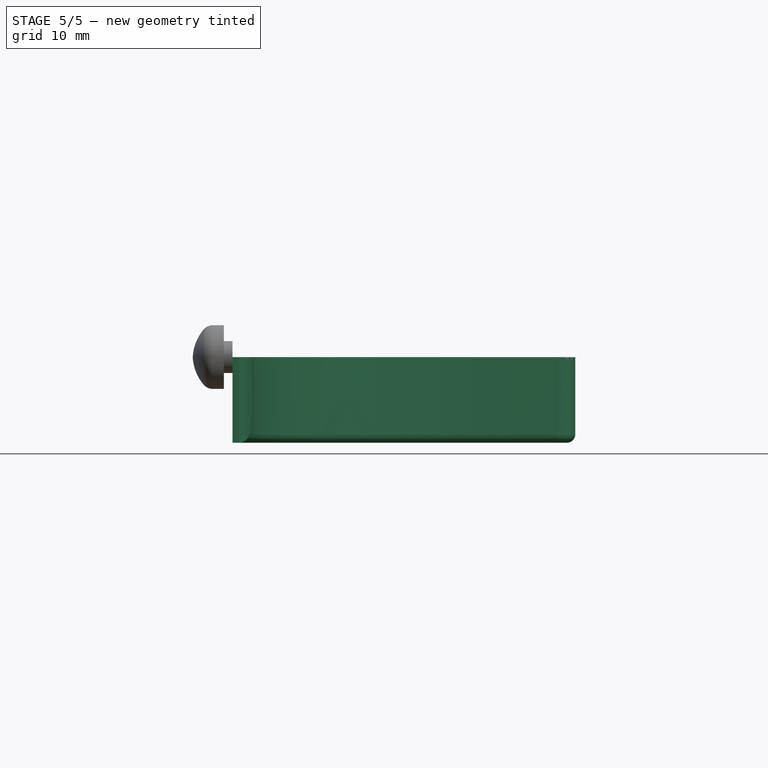
[diagram: stage 5 of 5 — front view after this stage's code; geometry added in this stage tinted green]
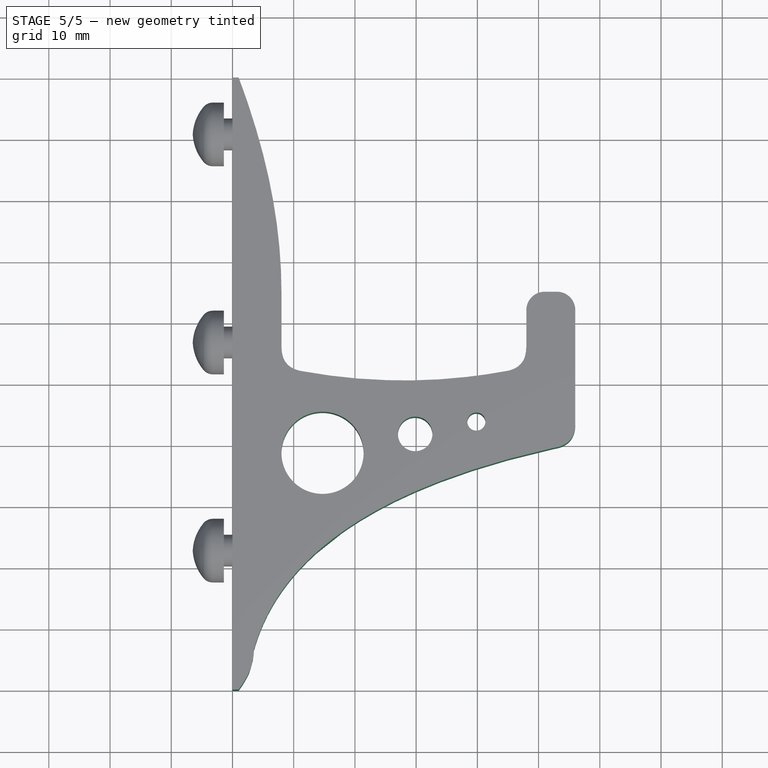
[diagram: stage 5 of 5 — top view after this stage's code; geometry added in this stage tinted green]
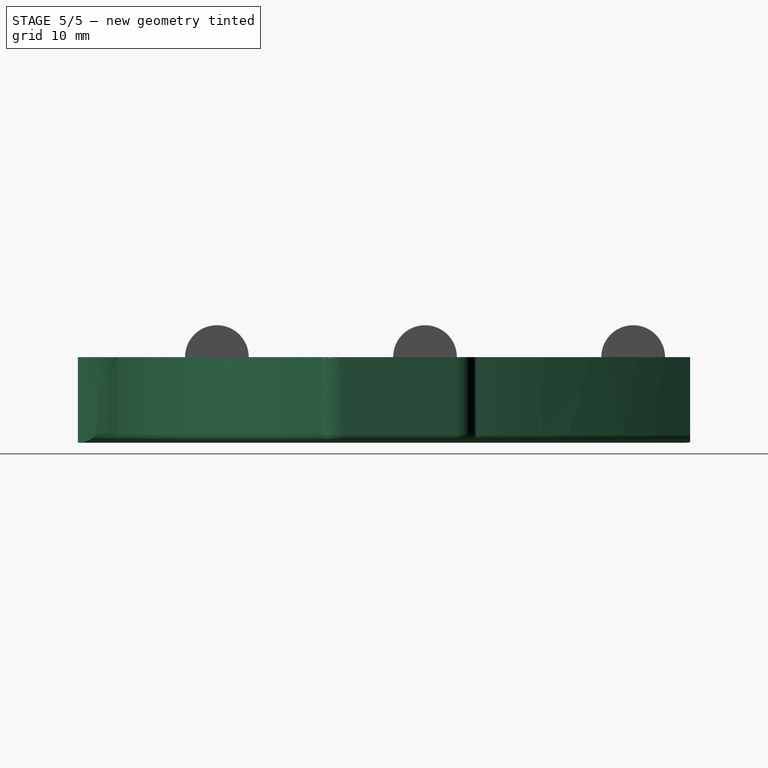
[diagram: stage 5 of 5 — right view after this stage's code; geometry added in this stage tinted green]
FEATURE [Part::Fillet] Fillet009
  Base = -> Fillet008
  Edges = 1 edges r=1.4: [Edge16]
FEATURE [Part::Fillet] Fillet010
  Base = -> Fillet009
  Edges = 1 edges r=1.4: [Edge17]
FEATURE [Part::Mirroring] Part__Mirroring  label="Fillet010 (Mirror #1)"
  Base = (0,0,0)
  Normal = (0,0,1)
  Source = -> Fillet010
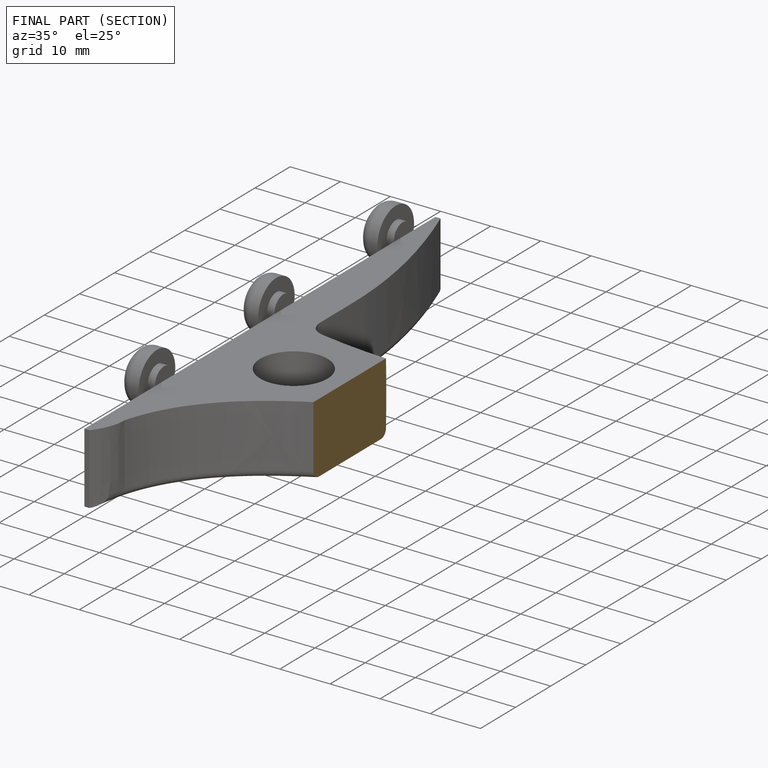
[diagram: finished part — half-section view (interior)]
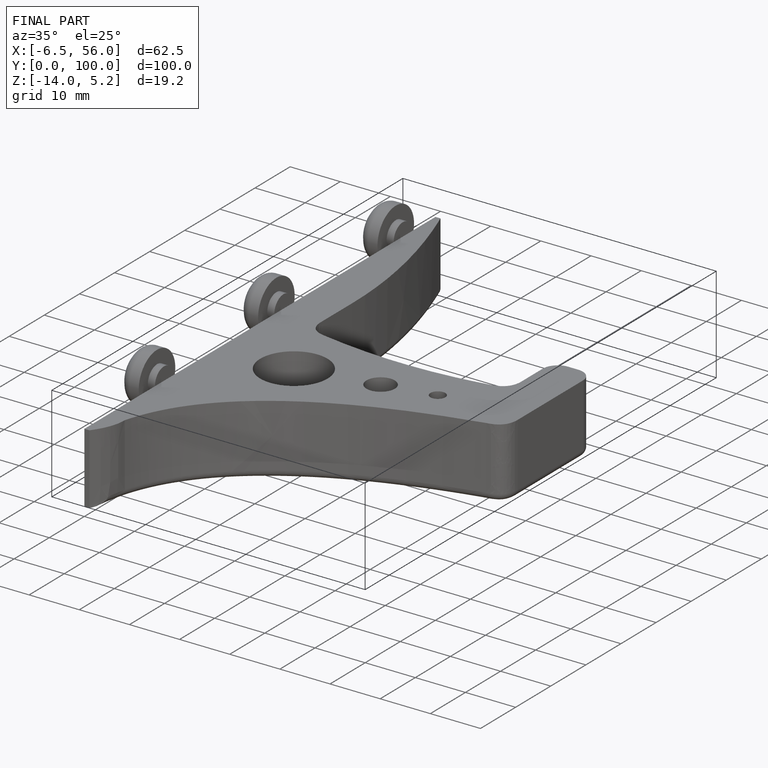
[diagram: finished part — iso view with bounding-box wireframe]
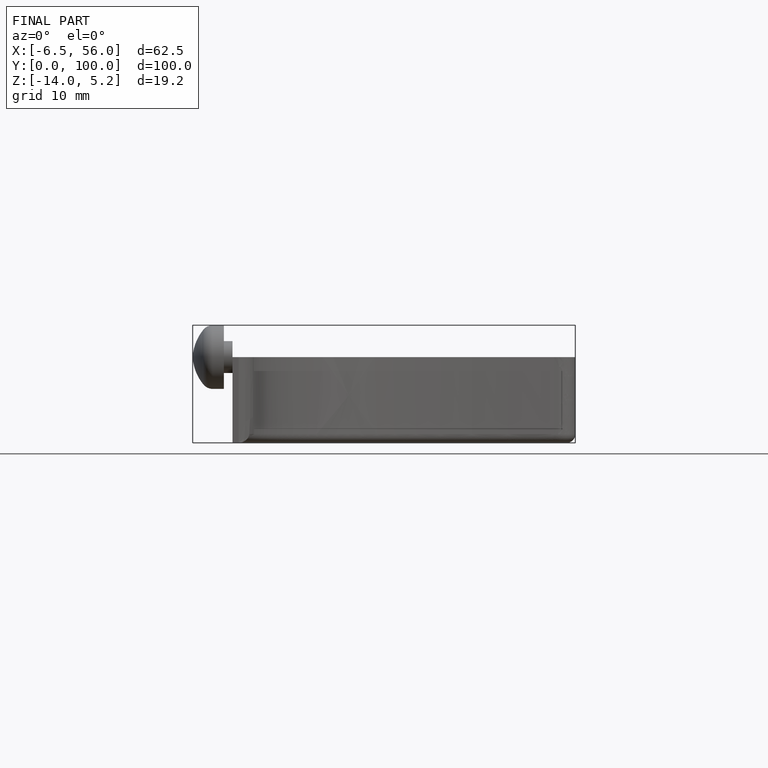
[diagram: finished part — front view with bounding-box wireframe]
